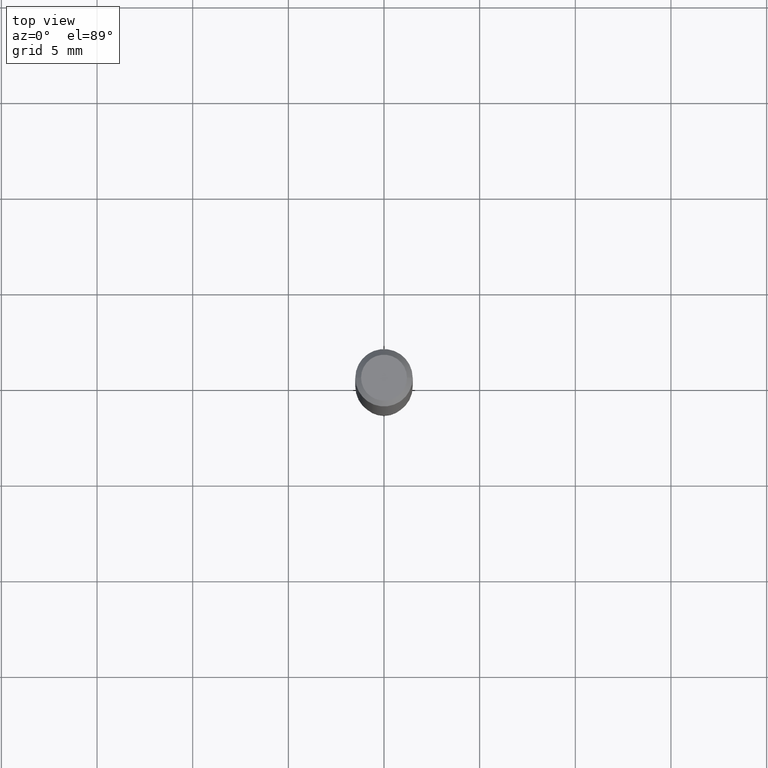
[diagram: clean part render]
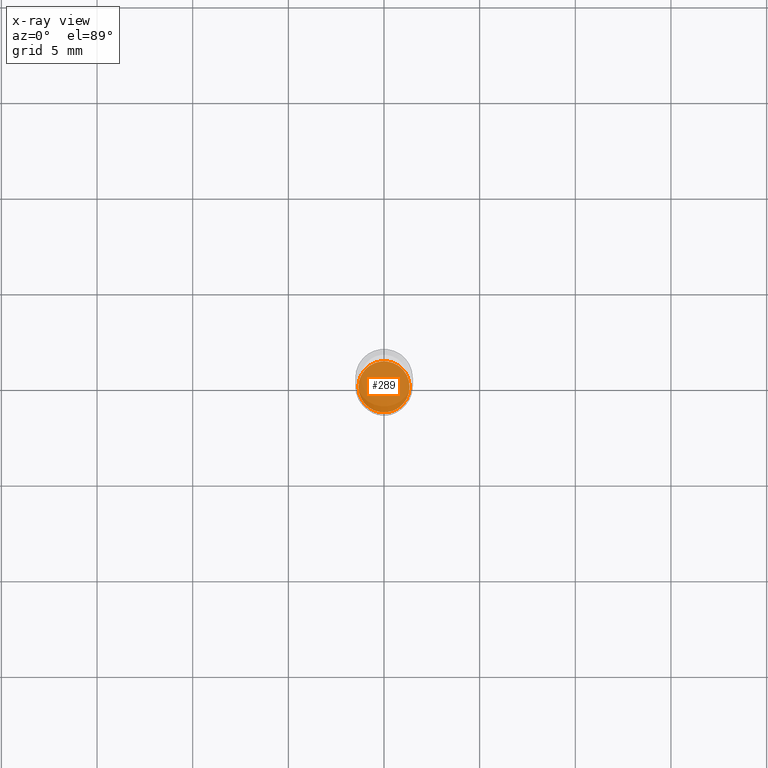
[diagram: x-ray — body ghosted, one internal face saturated and labeled with its STEP entity id]
A machine part, top view, then the same camera in x-ray: the body is ghosted and one INTERNAL B-rep face — a face not visible from any outside direction — is saturated and labeled: STEP entity #289.
In plain terms, the highlighted planar face has unit normal (-0, 0, 1).
Its self-contained STEP definition (entity closure, byte-faithful):
#10 = DIRECTION ( 'NONE',  ( -2.445468806185136597E-29, 3.491481338843145583E-15, 1.000000000000000000 ) ) ;
#54 = ORIENTED_EDGE ( 'NONE', *, *, #357, .F. ) ;
#59 = AXIS2_PLACEMENT_3D ( 'NONE', #288, #284, #95 ) ;
#64 = ORIENTED_EDGE ( 'NONE', *, *, #175, .F. ) ;
#89 = CARTESIAN_POINT ( 'NONE',  ( -0.05265000000000000235, -3.444676347812018610E-15, -1.094499999999999806 ) ) ;
#95 = DIRECTION ( 'NONE',  ( 1.000000000000000000, -6.982962677686268288E-15, 0.000000000000000000 ) ) ;
#98 = DIRECTION ( 'NONE',  ( 1.000000000000000000, -6.982962677686265922E-15, 4.876176775795935793E-29 ) ) ;
#163 = VERTEX_POINT ( 'NONE', #210 ) ;
#172 = CIRCLE ( 'NONE', #59, 0.05265000000000000235 ) ;
#175 = EDGE_CURVE ( 'NONE', #163, #239, #172, .T. ) ;
#210 = CARTESIAN_POINT ( 'NONE',  ( 0.05265000000000000235, -4.189079310344004047E-15, -1.094499999999999806 ) ) ;
#239 = VERTEX_POINT ( 'NONE', #89 ) ;
#262 = CARTESIAN_POINT ( 'NONE',  ( 2.676565608369631234E-29, -3.821426325363821984E-15, -1.094499999999999806 ) ) ;
#283 = DIRECTION ( 'NONE',  ( -2.438088387897960049E-29, 3.491481338843145188E-15, 1.000000000000000000 ) ) ;
#284 = DIRECTION ( 'NONE',  ( -2.445468806185136597E-29, 3.491481338843145583E-15, 1.000000000000000000 ) ) ;
#288 = CARTESIAN_POINT ( 'NONE',  ( 2.676565608369631234E-29, -3.821426325363821984E-15, -1.094499999999999806 ) ) ;
#289 = ADVANCED_FACE ( 'NONE', ( #344 ), #306, .F. ) ;
#306 = PLANE ( 'NONE',  #332 ) ;
#332 = AXIS2_PLACEMENT_3D ( 'NONE', #359, #283, #98 ) ;
#341 = CIRCLE ( 'NONE', #407, 0.05265000000000000235 ) ;
#344 = FACE_OUTER_BOUND ( 'NONE', #353, .T. ) ;
#353 = EDGE_LOOP ( 'NONE', ( #64, #54 ) ) ;
#357 = EDGE_CURVE ( 'NONE', #239, #163, #341, .T. ) ;
#359 = CARTESIAN_POINT ( 'NONE',  ( 4.659387230379302898E-29, -9.819129074478338943E-16, -1.094499999999999806 ) ) ;
#407 = AXIS2_PLACEMENT_3D ( 'NONE', #262, #10, #425 ) ;
#425 = DIRECTION ( 'NONE',  ( 1.000000000000000000, -6.982962677686268288E-15, 0.000000000000000000 ) ) ;